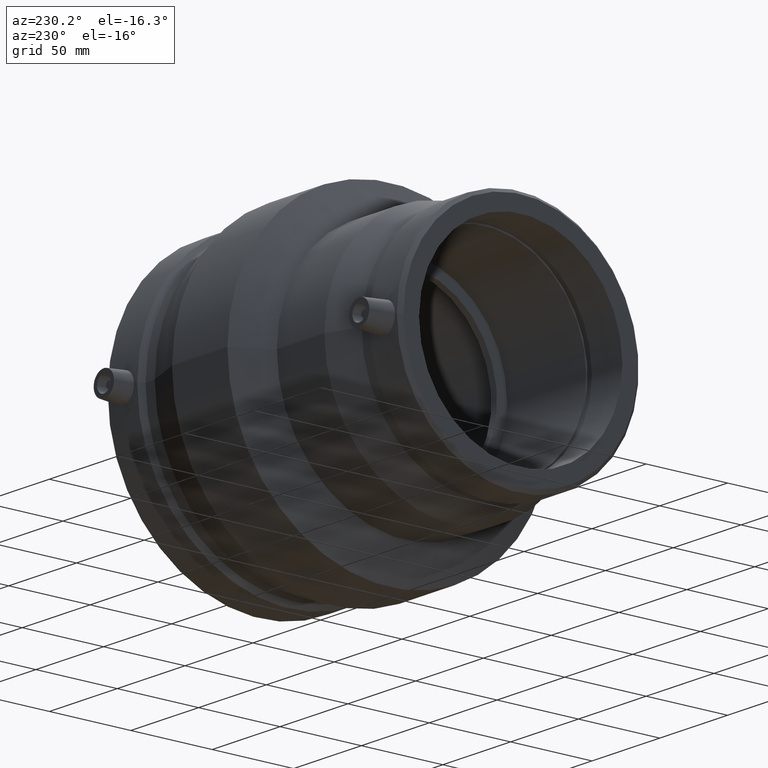
[diagram: clean part render]
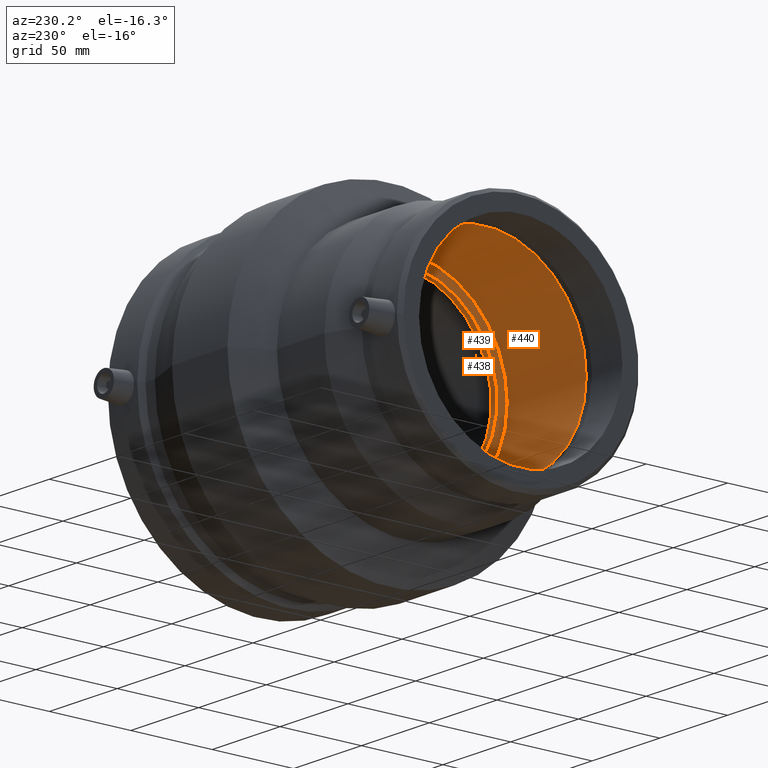
[diagram: same view with one multi-face feature highlighted, each face labeled with its STEP entity id]
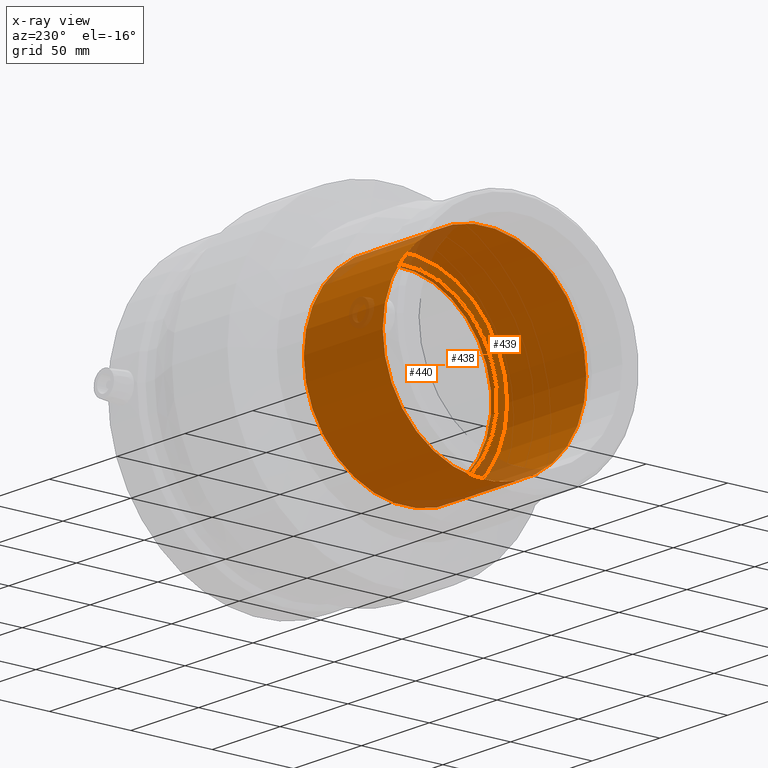
[diagram: x-ray of the same camera — body ghosted, the whole feature saturated]
A machine part, auxiliary view. The highlighted faces form ONE feature: a stepped (counterbored) hole: 2 coaxial cylindrical walls of radii 56.25 -> 62.5 mm joined by 1 annular planar shoulder face(s). The faces share edges in the B-rep.
The next image is the same camera in x-ray: the body ghosted and the whole hole feature saturated, so the bore chain is visible through the body.
Their STEP definitions:
[1] entity #440 (Cylinder):
#64=FACE_BOUND('',#193,.T.);
#81=CYLINDRICAL_SURFACE('',#515,62.5);
#118=FACE_OUTER_BOUND('',#192,.T.);
#192=EDGE_LOOP('',(#385));
#193=EDGE_LOOP('',(#386));
#233=CIRCLE('',#514,62.5);
#234=CIRCLE('',#516,62.5);
#272=VERTEX_POINT('',#848);
#273=VERTEX_POINT('',#851);
#311=EDGE_CURVE('',#272,#272,#233,.T.);
#312=EDGE_CURVE('',#273,#273,#234,.T.);
#385=ORIENTED_EDGE('',*,*,#311,.T.);
#386=ORIENTED_EDGE('',*,*,#312,.F.);
#440=ADVANCED_FACE('',(#118,#64),#81,.F.);
#514=AXIS2_PLACEMENT_3D('',#849,#660,#661);
#515=AXIS2_PLACEMENT_3D('',#850,#662,#663);
#516=AXIS2_PLACEMENT_3D('',#852,#664,#665);
#660=DIRECTION('center_axis',(1.,0.,0.));
#661=DIRECTION('ref_axis',(0.,0.,-1.));
#662=DIRECTION('center_axis',(1.,0.,0.));
#663=DIRECTION('ref_axis',(0.,1.,0.));
#664=DIRECTION('center_axis',(1.,0.,0.));
#665=DIRECTION('ref_axis',(0.,0.,-1.));
#848=CARTESIAN_POINT('',(-12.5,62.5,0.));
#849=CARTESIAN_POINT('Origin',(-12.5,0.,0.));
#850=CARTESIAN_POINT('Origin',(-41.6639,0.,0.));
#851=CARTESIAN_POINT('',(-70.8278000000001,62.5,0.));
#852=CARTESIAN_POINT('Origin',(-70.8278000000001,0.,0.));
[2] entity #438 (Cylinder):
#62=FACE_BOUND('',#189,.T.);
#80=CYLINDRICAL_SURFACE('',#511,56.25);
#116=FACE_OUTER_BOUND('',#188,.T.);
#188=EDGE_LOOP('',(#381));
#189=EDGE_LOOP('',(#382));
#231=CIRCLE('',#510,56.25);
#232=CIRCLE('',#512,56.25);
#270=VERTEX_POINT('',#842);
#271=VERTEX_POINT('',#845);
#309=EDGE_CURVE('',#270,#270,#231,.T.);
#310=EDGE_CURVE('',#271,#271,#232,.T.);
#381=ORIENTED_EDGE('',*,*,#309,.T.);
#382=ORIENTED_EDGE('',*,*,#310,.F.);
#438=ADVANCED_FACE('',(#116,#62),#80,.F.);
#510=AXIS2_PLACEMENT_3D('',#843,#652,#653);
#511=AXIS2_PLACEMENT_3D('',#844,#654,#655);
#512=AXIS2_PLACEMENT_3D('',#846,#656,#657);
#652=DIRECTION('center_axis',(1.,0.,0.));
#653=DIRECTION('ref_axis',(0.,0.,-1.));
#654=DIRECTION('center_axis',(1.,0.,0.));
#655=DIRECTION('ref_axis',(0.,1.,0.));
#656=DIRECTION('center_axis',(1.,0.,0.));
#657=DIRECTION('ref_axis',(0.,0.,-1.));
#842=CARTESIAN_POINT('',(-8.25,56.25,0.));
#843=CARTESIAN_POINT('Origin',(-8.25,0.,0.));
#844=CARTESIAN_POINT('Origin',(-10.375,0.,0.));
#845=CARTESIAN_POINT('',(-12.5,56.25,0.));
#846=CARTESIAN_POINT('Origin',(-12.5,0.,0.));
[3] entity #439 (Plane):
#63=FACE_BOUND('',#191,.T.);
#117=FACE_OUTER_BOUND('',#190,.T.);
#190=EDGE_LOOP('',(#383));
#191=EDGE_LOOP('',(#384));
#232=CIRCLE('',#512,56.25);
#233=CIRCLE('',#514,62.5);
#271=VERTEX_POINT('',#845);
#272=VERTEX_POINT('',#848);
#310=EDGE_CURVE('',#271,#271,#232,.T.);
#311=EDGE_CURVE('',#272,#272,#233,.T.);
#383=ORIENTED_EDGE('',*,*,#311,.F.);
#384=ORIENTED_EDGE('',*,*,#310,.T.);
#403=PLANE('',#513);
#439=ADVANCED_FACE('',(#117,#63),#403,.T.);
#512=AXIS2_PLACEMENT_3D('',#846,#656,#657);
#513=AXIS2_PLACEMENT_3D('',#847,#658,#659);
#514=AXIS2_PLACEMENT_3D('',#849,#660,#661);
#656=DIRECTION('center_axis',(1.,0.,0.));
#657=DIRECTION('ref_axis',(0.,0.,-1.));
#658=DIRECTION('center_axis',(-1.,0.,0.));
#659=DIRECTION('ref_axis',(0.,0.,1.));
#660=DIRECTION('center_axis',(1.,0.,0.));
#661=DIRECTION('ref_axis',(0.,0.,-1.));
#845=CARTESIAN_POINT('',(-12.5,56.25,0.));
#846=CARTESIAN_POINT('Origin',(-12.5,0.,0.));
#847=CARTESIAN_POINT('Origin',(-12.5,62.5,0.));
#848=CARTESIAN_POINT('',(-12.5,62.5,0.));
#849=CARTESIAN_POINT('Origin',(-12.5,0.,0.));